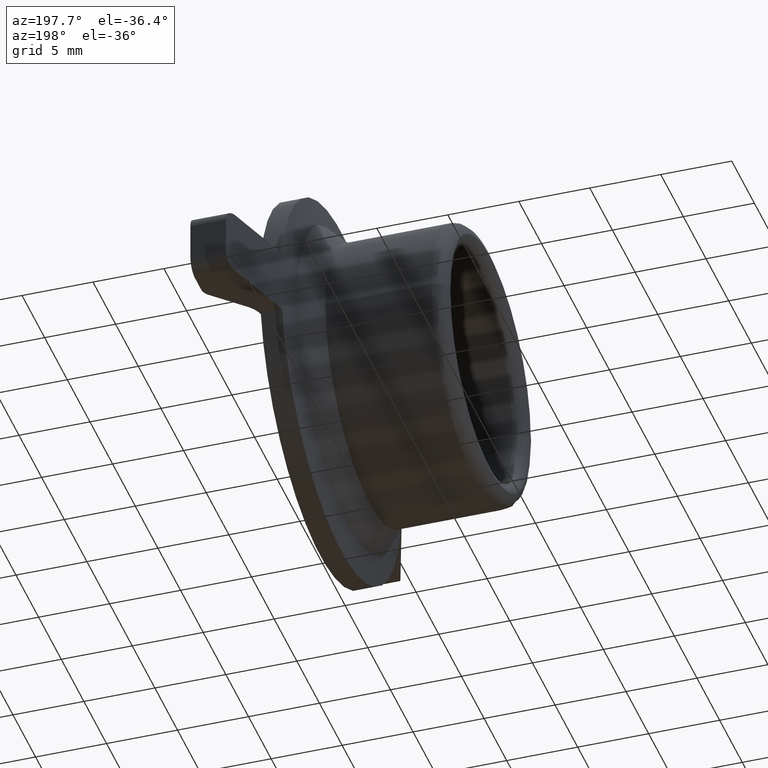
[diagram: clean part render]
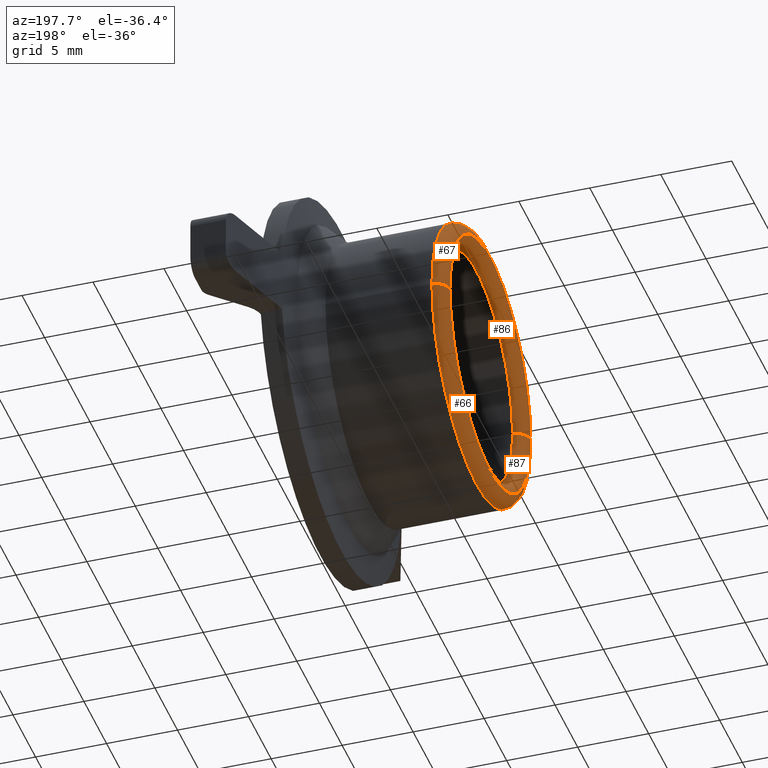
[diagram: same view with one multi-face feature highlighted, each face labeled with its STEP entity id]
A machine part, auxiliary view. The highlighted faces form ONE feature: a constant-radius fillet chain: 4 tangent blend faces with common blend radius 1 mm. The faces share edges in the B-rep.
Their STEP definitions:
[1] entity #66 (Torus):
#25=TOROIDAL_SURFACE('',#1113,8.8,1.);
#66=ADVANCED_FACE('',(#121),#25,.T.);
#121=FACE_OUTER_BOUND('',#177,.F.);
#177=EDGE_LOOP('',(#259,#260,#261,#262));
#259=ORIENTED_EDGE('',*,*,#760,.F.);
#260=ORIENTED_EDGE('',*,*,#748,.F.);
#261=ORIENTED_EDGE('',*,*,#759,.T.);
#262=ORIENTED_EDGE('',*,*,#740,.T.);
#740=EDGE_CURVE('',#969,#970,#870,.T.);
#748=EDGE_CURVE('',#961,#962,#874,.T.);
#759=EDGE_CURVE('',#961,#969,#883,.T.);
#760=EDGE_CURVE('',#962,#970,#884,.T.);
#870=CIRCLE('',#1057,8.9);
#874=CIRCLE('',#1061,9.8);
#883=CIRCLE('',#1070,1.);
#884=CIRCLE('',#1071,1.);
#961=VERTEX_POINT('',#1533);
#962=VERTEX_POINT('',#1534);
#969=VERTEX_POINT('',#1541);
#970=VERTEX_POINT('',#1542);
#1057=AXIS2_PLACEMENT_3D('',#1650,#1209,#1210);
#1061=AXIS2_PLACEMENT_3D('',#1658,#1221,#1222);
#1070=AXIS2_PLACEMENT_3D('',#1669,#1241,#1242);
#1071=AXIS2_PLACEMENT_3D('',#1670,#1243,#1244);
#1113=AXIS2_PLACEMENT_3D('',#1772,#1387,#1388);
#1209=DIRECTION('',(-1.,0.,0.));
#1210=DIRECTION('',(0.,1.,0.));
#1221=DIRECTION('',(-1.,0.,0.));
#1222=DIRECTION('',(0.,1.,0.));
#1241=DIRECTION('',(0.,0.,1.));
#1242=DIRECTION('',(0.,1.,0.));
#1243=DIRECTION('',(0.,0.,-1.));
#1244=DIRECTION('',(0.,-1.,0.));
#1387=DIRECTION('',(-1.,0.,0.));
#1388=DIRECTION('',(0.,1.,0.));
#1533=CARTESIAN_POINT('',(79.1649997146962,-40.199996427193,128.500000055078));
#1534=CARTESIAN_POINT('',(79.1649997146962,-59.799996427193,128.500000055078));
#1541=CARTESIAN_POINT('',(78.1700122775895,-41.099996427193,128.500000055078));
#1542=CARTESIAN_POINT('',(78.1700122775895,-58.899996427193,128.500000055078));
#1650=CARTESIAN_POINT('',(78.1700122775895,-49.999996427193,128.500000055078));
#1658=CARTESIAN_POINT('',(79.1649997146962,-49.999996427193,128.500000055078));
#1669=CARTESIAN_POINT('',(79.1649997146962,-41.199996427193,128.500000055078));
#1670=CARTESIAN_POINT('',(79.1649997146962,-58.799996427193,128.500000055078));
#1772=CARTESIAN_POINT('',(79.1649997146962,-49.999996427193,128.500000055078));
[2] entity #67 (Torus):
#26=TOROIDAL_SURFACE('',#1114,8.8,1.);
#67=ADVANCED_FACE('',(#122),#26,.T.);
#122=FACE_OUTER_BOUND('',#178,.F.);
#178=EDGE_LOOP('',(#263,#264,#265,#266));
#263=ORIENTED_EDGE('',*,*,#759,.F.);
#264=ORIENTED_EDGE('',*,*,#747,.F.);
#265=ORIENTED_EDGE('',*,*,#760,.T.);
#266=ORIENTED_EDGE('',*,*,#739,.T.);
#739=EDGE_CURVE('',#970,#969,#869,.T.);
#747=EDGE_CURVE('',#962,#961,#873,.T.);
#759=EDGE_CURVE('',#961,#969,#883,.T.);
#760=EDGE_CURVE('',#962,#970,#884,.T.);
#869=CIRCLE('',#1056,8.9);
#873=CIRCLE('',#1060,9.8);
#883=CIRCLE('',#1070,1.);
#884=CIRCLE('',#1071,1.);
#961=VERTEX_POINT('',#1533);
#962=VERTEX_POINT('',#1534);
#969=VERTEX_POINT('',#1541);
#970=VERTEX_POINT('',#1542);
#1056=AXIS2_PLACEMENT_3D('',#1649,#1207,#1208);
#1060=AXIS2_PLACEMENT_3D('',#1657,#1219,#1220);
#1070=AXIS2_PLACEMENT_3D('',#1669,#1241,#1242);
#1071=AXIS2_PLACEMENT_3D('',#1670,#1243,#1244);
#1114=AXIS2_PLACEMENT_3D('',#1773,#1389,#1390);
#1207=DIRECTION('',(-1.,0.,0.));
#1208=DIRECTION('',(0.,-1.,0.));
#1219=DIRECTION('',(-1.,0.,0.));
#1220=DIRECTION('',(0.,-1.,0.));
#1241=DIRECTION('',(0.,0.,1.));
#1242=DIRECTION('',(0.,1.,0.));
#1243=DIRECTION('',(0.,0.,-1.));
#1244=DIRECTION('',(0.,-1.,0.));
#1389=DIRECTION('',(-1.,0.,0.));
#1390=DIRECTION('',(0.,-1.,0.));
#1533=CARTESIAN_POINT('',(79.1649997146962,-40.199996427193,128.500000055078));
#1534=CARTESIAN_POINT('',(79.1649997146962,-59.799996427193,128.500000055078));
#1541=CARTESIAN_POINT('',(78.1700122775895,-41.099996427193,128.500000055078));
#1542=CARTESIAN_POINT('',(78.1700122775895,-58.899996427193,128.500000055078));
#1649=CARTESIAN_POINT('',(78.1700122775895,-49.999996427193,128.500000055078));
#1657=CARTESIAN_POINT('',(79.1649997146961,-49.999996427193,128.500000055078));
#1669=CARTESIAN_POINT('',(79.1649997146962,-41.199996427193,128.500000055078));
#1670=CARTESIAN_POINT('',(79.1649997146962,-58.799996427193,128.500000055078));
#1773=CARTESIAN_POINT('',(79.1649997146962,-49.999996427193,128.500000055078));
[3] entity #86 (Torus):
#27=TOROIDAL_SURFACE('',#1133,9.,1.);
#86=ADVANCED_FACE('',(#141),#27,.T.);
#141=FACE_OUTER_BOUND('',#197,.F.);
#197=EDGE_LOOP('',(#367,#368,#369,#370));
#367=ORIENTED_EDGE('',*,*,#828,.F.);
#368=ORIENTED_EDGE('',*,*,#739,.F.);
#369=ORIENTED_EDGE('',*,*,#827,.T.);
#370=ORIENTED_EDGE('',*,*,#814,.T.);
#739=EDGE_CURVE('',#970,#969,#869,.T.);
#814=EDGE_CURVE('',#935,#936,#898,.T.);
#827=EDGE_CURVE('',#970,#935,#907,.T.);
#828=EDGE_CURVE('',#969,#936,#908,.T.);
#869=CIRCLE('',#1056,8.9);
#898=CIRCLE('',#1085,8.);
#907=CIRCLE('',#1094,1.);
#908=CIRCLE('',#1095,1.);
#935=VERTEX_POINT('',#1507);
#936=VERTEX_POINT('',#1508);
#969=VERTEX_POINT('',#1541);
#970=VERTEX_POINT('',#1542);
#1056=AXIS2_PLACEMENT_3D('',#1649,#1207,#1208);
#1085=AXIS2_PLACEMENT_3D('',#1724,#1311,#1312);
#1094=AXIS2_PLACEMENT_3D('',#1737,#1333,#1334);
#1095=AXIS2_PLACEMENT_3D('',#1738,#1335,#1336);
#1133=AXIS2_PLACEMENT_3D('',#1792,#1427,#1428);
#1207=DIRECTION('',(-1.,0.,0.));
#1208=DIRECTION('',(0.,-1.,0.));
#1311=DIRECTION('',(-1.,0.,0.));
#1312=DIRECTION('',(0.,-1.,0.));
#1333=DIRECTION('',(0.,0.,-1.));
#1334=DIRECTION('',(-0.99498743710662,0.100000000000003,0.));
#1335=DIRECTION('',(0.,0.,1.));
#1336=DIRECTION('',(-0.99498743710662,-0.100000000000003,0.));
#1427=DIRECTION('',(-1.,0.,0.));
#1428=DIRECTION('',(0.,-1.,0.));
#1507=CARTESIAN_POINT('',(79.1649997146962,-57.999996427193,128.500000055078));
#1508=CARTESIAN_POINT('',(79.1649997146962,-41.999996427193,128.500000055078));
#1541=CARTESIAN_POINT('',(78.1700122775895,-41.099996427193,128.500000055078));
#1542=CARTESIAN_POINT('',(78.1700122775895,-58.899996427193,128.500000055078));
#1649=CARTESIAN_POINT('',(78.1700122775895,-49.999996427193,128.500000055078));
#1724=CARTESIAN_POINT('',(79.1649997146961,-49.999996427193,128.500000055078));
#1737=CARTESIAN_POINT('',(79.1649997146962,-58.999996427193,128.500000055078));
#1738=CARTESIAN_POINT('',(79.1649997146962,-40.999996427193,128.500000055078));
#1792=CARTESIAN_POINT('',(79.1649997146962,-49.999996427193,128.500000055078));
[4] entity #87 (Torus):
#28=TOROIDAL_SURFACE('',#1134,9.,1.);
#87=ADVANCED_FACE('',(#142),#28,.T.);
#142=FACE_OUTER_BOUND('',#198,.F.);
#198=EDGE_LOOP('',(#371,#372,#373,#374));
#371=ORIENTED_EDGE('',*,*,#827,.F.);
#372=ORIENTED_EDGE('',*,*,#740,.F.);
#373=ORIENTED_EDGE('',*,*,#828,.T.);
#374=ORIENTED_EDGE('',*,*,#813,.T.);
#740=EDGE_CURVE('',#969,#970,#870,.T.);
#813=EDGE_CURVE('',#936,#935,#897,.T.);
#827=EDGE_CURVE('',#970,#935,#907,.T.);
#828=EDGE_CURVE('',#969,#936,#908,.T.);
#870=CIRCLE('',#1057,8.9);
#897=CIRCLE('',#1084,8.);
#907=CIRCLE('',#1094,1.);
#908=CIRCLE('',#1095,1.);
#935=VERTEX_POINT('',#1507);
#936=VERTEX_POINT('',#1508);
#969=VERTEX_POINT('',#1541);
#970=VERTEX_POINT('',#1542);
#1057=AXIS2_PLACEMENT_3D('',#1650,#1209,#1210);
#1084=AXIS2_PLACEMENT_3D('',#1723,#1309,#1310);
#1094=AXIS2_PLACEMENT_3D('',#1737,#1333,#1334);
#1095=AXIS2_PLACEMENT_3D('',#1738,#1335,#1336);
#1134=AXIS2_PLACEMENT_3D('',#1793,#1429,#1430);
#1209=DIRECTION('',(-1.,0.,0.));
#1210=DIRECTION('',(0.,1.,0.));
#1309=DIRECTION('',(-1.,0.,0.));
#1310=DIRECTION('',(0.,1.,0.));
#1333=DIRECTION('',(0.,0.,-1.));
#1334=DIRECTION('',(-0.99498743710662,0.100000000000003,0.));
#1335=DIRECTION('',(0.,0.,1.));
#1336=DIRECTION('',(-0.99498743710662,-0.100000000000003,0.));
#1429=DIRECTION('',(-1.,0.,0.));
#1430=DIRECTION('',(0.,1.,0.));
#1507=CARTESIAN_POINT('',(79.1649997146962,-57.999996427193,128.500000055078));
#1508=CARTESIAN_POINT('',(79.1649997146962,-41.999996427193,128.500000055078));
#1541=CARTESIAN_POINT('',(78.1700122775895,-41.099996427193,128.500000055078));
#1542=CARTESIAN_POINT('',(78.1700122775895,-58.899996427193,128.500000055078));
#1650=CARTESIAN_POINT('',(78.1700122775895,-49.999996427193,128.500000055078));
#1723=CARTESIAN_POINT('',(79.1649997146961,-49.999996427193,128.500000055078));
#1737=CARTESIAN_POINT('',(79.1649997146962,-58.999996427193,128.500000055078));
#1738=CARTESIAN_POINT('',(79.1649997146962,-40.999996427193,128.500000055078));
#1793=CARTESIAN_POINT('',(79.1649997146962,-49.999996427193,128.500000055078));